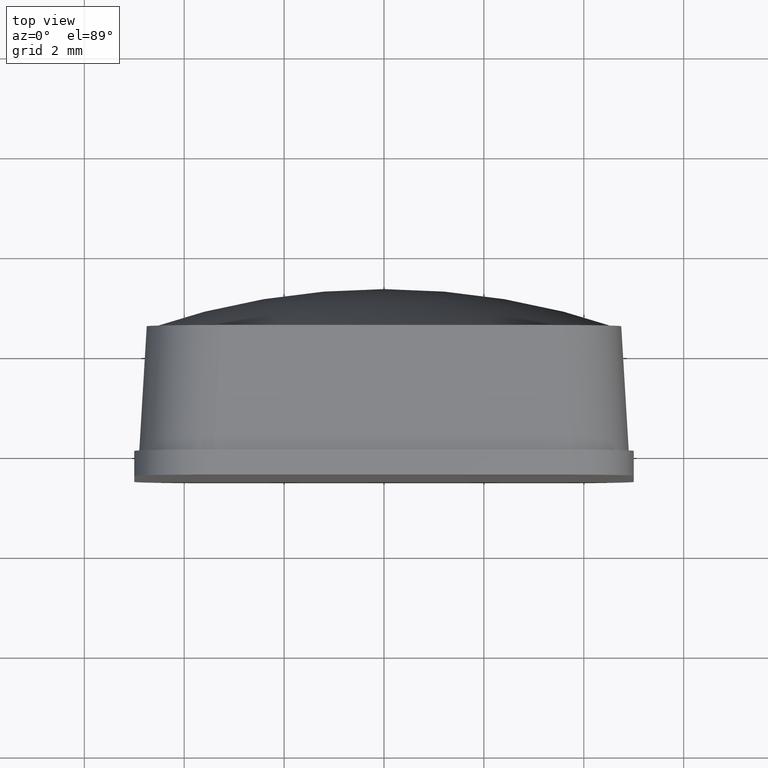
[diagram: clean part render]
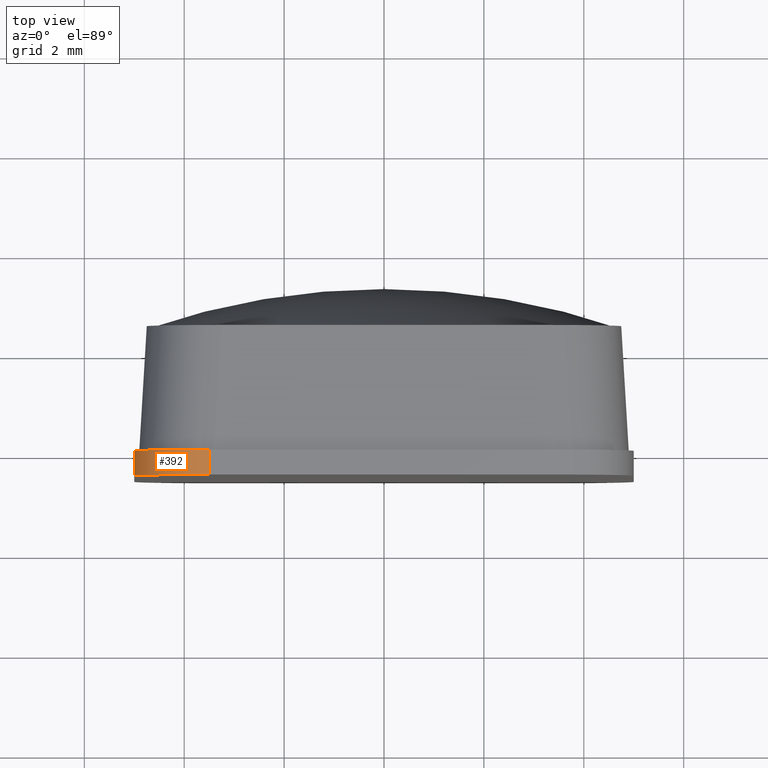
[diagram: same view with one face highlighted and labeled with its STEP entity id]
A machine part, top view. The second image highlights one B-rep face of the part: STEP entity #392.
In plain terms, the highlighted cylindrical surface (partial cylindrical patch) has radius 1.5 mm, axis along (0, -1, 0).
Its self-contained STEP definition (entity closure, byte-faithful):
#49=FACE_OUTER_BOUND('',#72,.T.);
#72=EDGE_LOOP('',(#308,#309,#310,#311));
#107=LINE('',#645,#143);
#108=LINE('',#648,#144);
#143=VECTOR('',#519,0.5);
#144=VECTOR('',#522,0.5);
#162=CIRCLE('',#413,1.5);
#166=CIRCLE('',#430,1.5);
#178=VERTEX_POINT('',#593);
#179=VERTEX_POINT('',#595);
#195=VERTEX_POINT('',#644);
#196=VERTEX_POINT('',#646);
#215=EDGE_CURVE('',#179,#178,#162,.T.);
#239=EDGE_CURVE('',#178,#195,#107,.T.);
#240=EDGE_CURVE('',#195,#196,#166,.T.);
#241=EDGE_CURVE('',#196,#179,#108,.T.);
#308=ORIENTED_EDGE('',*,*,#215,.T.);
#309=ORIENTED_EDGE('',*,*,#239,.T.);
#310=ORIENTED_EDGE('',*,*,#240,.T.);
#311=ORIENTED_EDGE('',*,*,#241,.T.);
#378=CYLINDRICAL_SURFACE('',#429,1.5);
#392=ADVANCED_FACE('',(#49),#378,.T.);
#413=AXIS2_PLACEMENT_3D('',#596,#469,#470);
#429=AXIS2_PLACEMENT_3D('',#643,#517,#518);
#430=AXIS2_PLACEMENT_3D('',#647,#520,#521);
#469=DIRECTION('center_axis',(0.,1.,0.));
#470=DIRECTION('ref_axis',(-0.707106781186548,0.,0.707106781186547));
#517=DIRECTION('center_axis',(0.,-1.,0.));
#518=DIRECTION('ref_axis',(-0.707106781186548,0.,0.707106781186547));
#519=DIRECTION('',(0.,1.,0.));
#520=DIRECTION('center_axis',(0.,-1.,0.));
#521=DIRECTION('ref_axis',(-0.707106781186548,0.,0.707106781186547));
#522=DIRECTION('',(0.,-1.,0.));
#593=CARTESIAN_POINT('',(-3.5,-0.5,5.));
#595=CARTESIAN_POINT('',(-5.,-0.5,3.5));
#596=CARTESIAN_POINT('Origin',(-3.5,-0.5,3.5));
#643=CARTESIAN_POINT('Origin',(-3.5,0.,3.5));
#644=CARTESIAN_POINT('',(-3.5,0.,5.));
#645=CARTESIAN_POINT('',(-3.5,0.,5.));
#646=CARTESIAN_POINT('',(-5.,0.,3.5));
#647=CARTESIAN_POINT('Origin',(-3.5,0.,3.5));
#648=CARTESIAN_POINT('',(-5.,0.,3.5));